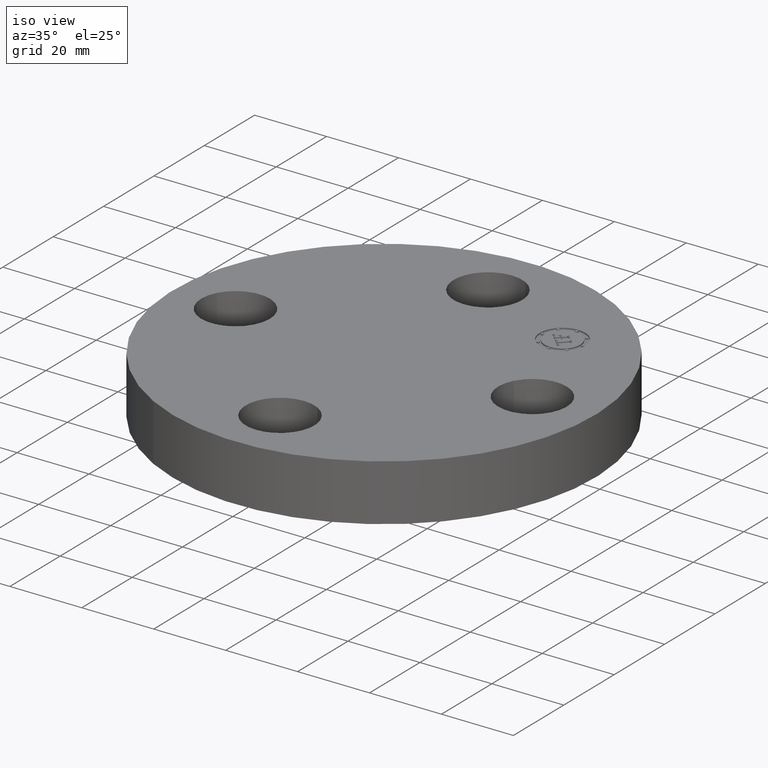
[diagram: clean part render]
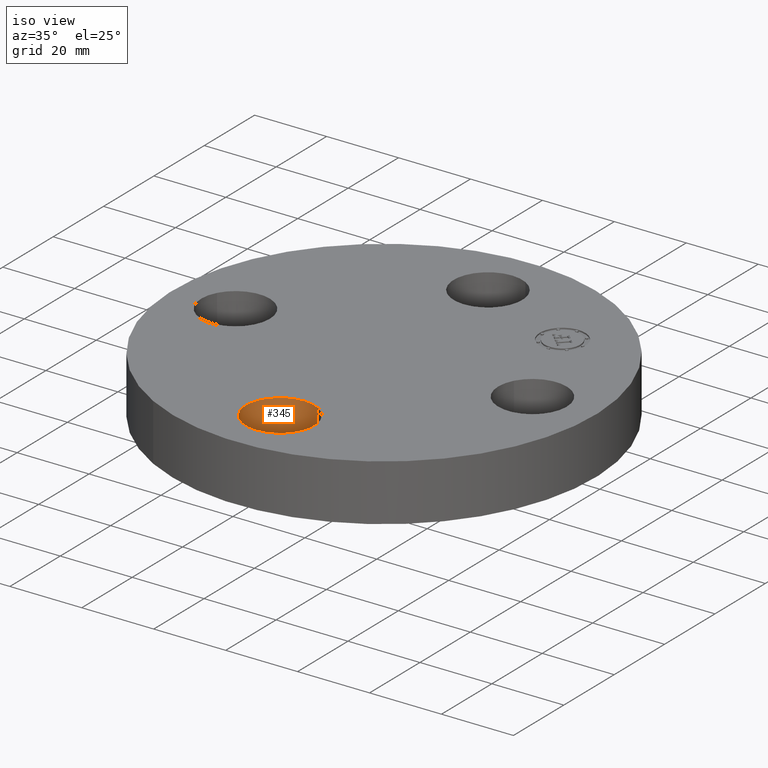
[diagram: same view with one face highlighted and labeled with its STEP entity id]
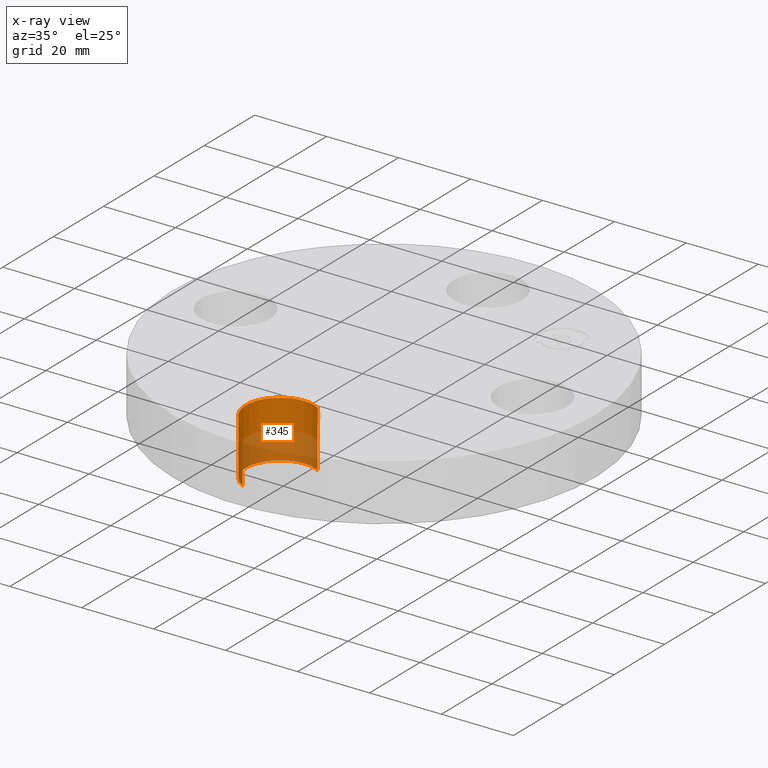
[diagram: x-ray of the same camera — body ghosted, the highlighted face saturated]
A machine part, iso view. The second image highlights one B-rep face of the part: STEP entity #345.
The next image is the same camera in x-ray: the body ghosted, the highlighted face saturated — about 45% of this face is hidden behind the body in this view.
In plain terms, the highlighted cylindrical surface (partial cylindrical patch) has radius 9.525 mm, axis along (0, -0, -1).
Its self-contained STEP definition (entity closure, byte-faithful):
#173=AXIS2_PLACEMENT_3D('Circle Axis2P3D',#171,#172,$) ;
#306=AXIS2_PLACEMENT_3D('Cylinder Axis2P3D',#303,#304,#305) ;
#336=AXIS2_PLACEMENT_3D('Circle Axis2P3D',#334,#335,$) ;
#166=CARTESIAN_POINT('Vertex',(0.179784576977,-1.2959065393,0.)) ;
#168=CARTESIAN_POINT('Vertex',(-0.179784576977,-1.95409346072,0.)) ;
#171=CARTESIAN_POINT('Axis2P3D Location',(-2.79741234551E-016,-1.62500000001,0.)) ;
#303=CARTESIAN_POINT('Axis2P3D Location',(-1.8023868212E-016,-1.62500000001,0.616062992128)) ;
#308=CARTESIAN_POINT('Line Origine',(0.179784576977,-1.2959065393,0.310000000001)) ;
#312=CARTESIAN_POINT('Vertex',(0.179784576977,-1.2959065393,0.620000000002)) ;
#315=CARTESIAN_POINT('Line Origine',(-0.179784576977,-1.95409346072,0.310000000001)) ;
#319=CARTESIAN_POINT('Vertex',(-0.179784576977,-1.95409346072,0.620000000002)) ;
#334=CARTESIAN_POINT('Axis2P3D Location',(-1.8023868212E-016,-1.62500000001,0.620000000002)) ;
#172=DIRECTION('Axis2P3D Direction',(0.,0.,-0.0393700787402)) ;
#304=DIRECTION('Axis2P3D Direction',(0.,-0.,-0.0393700787402)) ;
#305=DIRECTION('Axis2P3D XDirection',(-0.0188750212049,-0.0345504945626,0.)) ;
#309=DIRECTION('Vector Direction',(0.,0.,-0.0393700787402)) ;
#316=DIRECTION('Vector Direction',(0.,0.,-0.0393700787402)) ;
#335=DIRECTION('Axis2P3D Direction',(0.,-0.,-0.0393700787402)) ;
#310=VECTOR('Line Direction',#309,0.0393700787402) ;
#317=VECTOR('Line Direction',#316,0.0393700787402) ;
#340=ORIENTED_EDGE('',*,*,#321,.F.) ;
#341=ORIENTED_EDGE('',*,*,#175,.T.) ;
#342=ORIENTED_EDGE('',*,*,#314,.T.) ;
#343=ORIENTED_EDGE('',*,*,#338,.F.) ;
#345=ADVANCED_FACE('PartBody',(#344),#307,.F.) ;
#174=CIRCLE('generated circle',#173,0.375000000001) ;
#337=CIRCLE('generated circle',#336,0.375000000001) ;
#307=CYLINDRICAL_SURFACE('generated cylinder',#306,0.375000000001) ;
#175=EDGE_CURVE('',#169,#167,#174,.T.) ;
#314=EDGE_CURVE('',#167,#313,#311,.F.) ;
#321=EDGE_CURVE('',#169,#320,#318,.F.) ;
#338=EDGE_CURVE('',#320,#313,#337,.T.) ;
#339=EDGE_LOOP('',(#340,#341,#342,#343)) ;
#344=FACE_OUTER_BOUND('',#339,.T.) ;
#311=LINE('Line',#308,#310) ;
#318=LINE('Line',#315,#317) ;
#167=VERTEX_POINT('',#166) ;
#169=VERTEX_POINT('',#168) ;
#313=VERTEX_POINT('',#312) ;
#320=VERTEX_POINT('',#319) ;